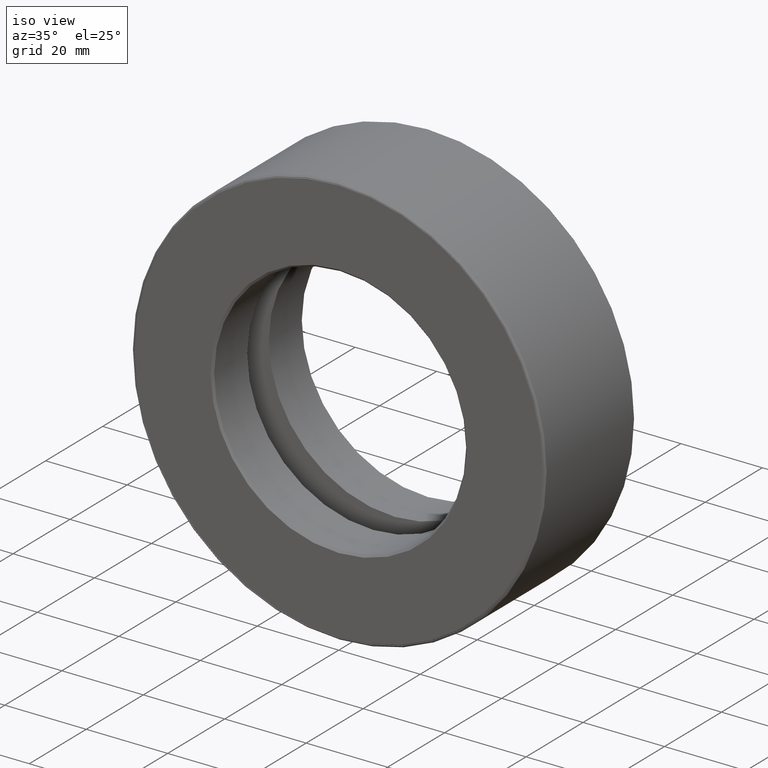
[diagram: clean part render]
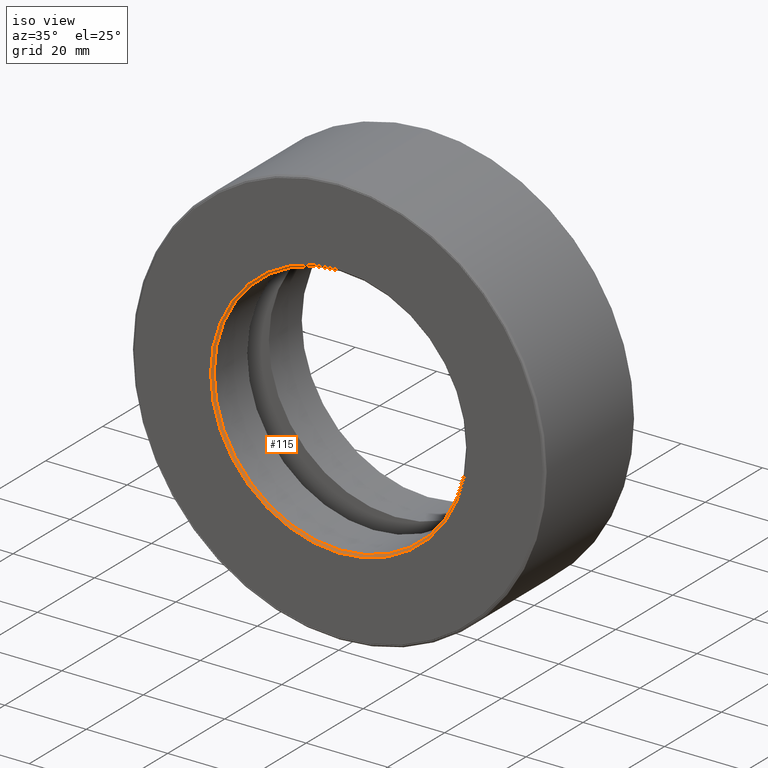
[diagram: same view with one face highlighted and labeled with its STEP entity id]
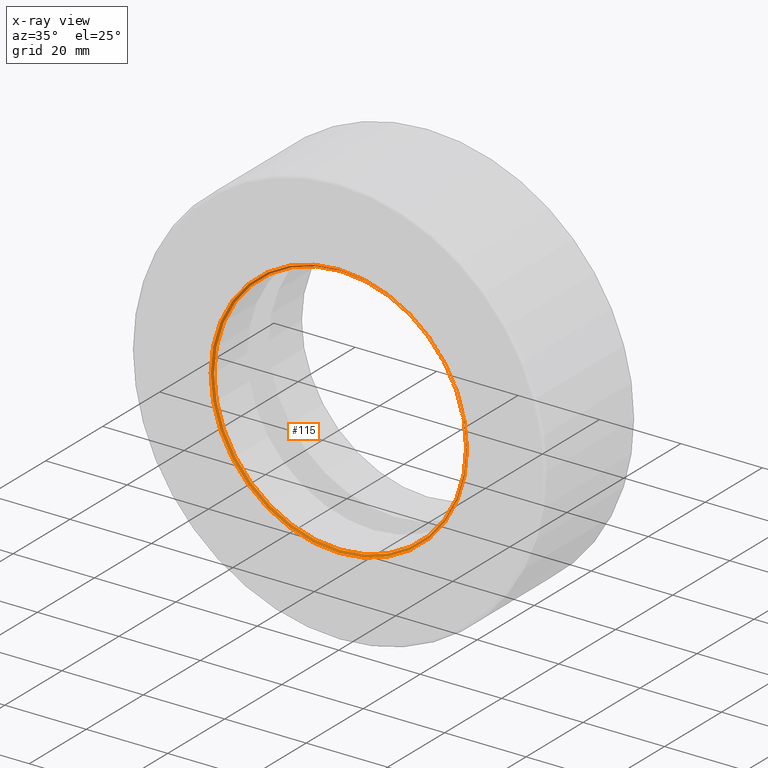
[diagram: x-ray of the same camera — body ghosted, the highlighted face saturated]
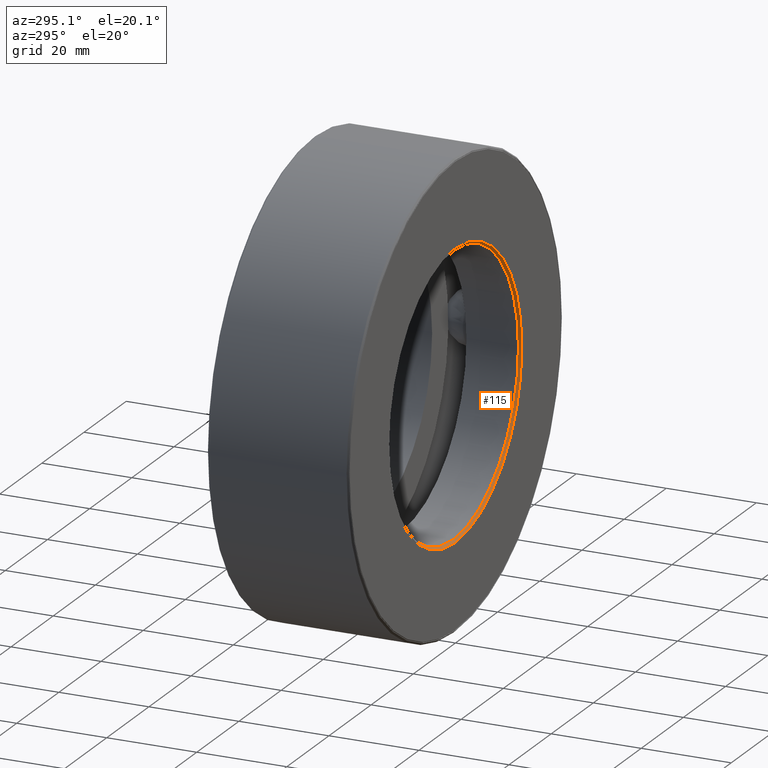
[diagram: same view with one face highlighted and labeled with its STEP entity id]
A machine part, iso view. The second image highlights one B-rep face of the part: STEP entity #115.
The next image is the same camera in x-ray: the body ghosted, the highlighted face saturated — about 0% of this face is hidden behind the body in this view.
A second angle (auxiliary view) of the same face is appended — the face is thin or edge-on in the first view.
In plain terms, the highlighted conical surface has half-angle 45 deg.
Its self-contained STEP definition (entity closure, byte-faithful):
#12 = DIRECTION ( 'NONE',  ( -0.0000000000000000000, 1.000000000000000000, -0.0000000000000000000 ) ) ;
#30 = CARTESIAN_POINT ( 'NONE',  ( 0.0000000000000000000, 0.0000000000000000000, 0.0000000000000000000 ) ) ;
#48 = ORIENTED_EDGE ( 'NONE', *, *, #431, .F. ) ;
#106 = DIRECTION ( 'NONE',  ( 0.0000000000000000000, 0.0000000000000000000, -1.000000000000000000 ) ) ;
#115 = ADVANCED_FACE ( 'NONE', ( #307, #332 ), #316, .F. ) ;
#127 = ORIENTED_EDGE ( 'NONE', *, *, #214, .T. ) ;
#128 = DIRECTION ( 'NONE',  ( -0.0000000000000000000, 1.000000000000000000, -0.0000000000000000000 ) ) ;
#174 = CIRCLE ( 'NONE', #190, 1.218750000000000000 ) ;
#190 = AXIS2_PLACEMENT_3D ( 'NONE', #250, #12, #386 ) ;
#212 = VERTEX_POINT ( 'NONE', #594 ) ;
#214 = EDGE_CURVE ( 'NONE', #212, #212, #174, .T. ) ;
#250 = CARTESIAN_POINT ( 'NONE',  ( 0.0000000000000000000, 0.02000000000000005900, 0.0000000000000000000 ) ) ;
#307 = FACE_OUTER_BOUND ( 'NONE', #419, .T. ) ;
#316 = CONICAL_SURFACE ( 'NONE', #438, 1.218750000000000000, 0.7853981633974482800 ) ;
#332 = FACE_BOUND ( 'NONE', #379, .T. ) ;
#379 = EDGE_LOOP ( 'NONE', ( #127 ) ) ;
#386 = DIRECTION ( 'NONE',  ( 0.0000000000000000000, 0.0000000000000000000, 1.000000000000000000 ) ) ;
#393 = DIRECTION ( 'NONE',  ( 0.0000000000000000000, -1.000000000000000000, 0.0000000000000000000 ) ) ;
#395 = CARTESIAN_POINT ( 'NONE',  ( 0.0000000000000000000, 0.0000000000000000000, 1.238750000000000000 ) ) ;
#398 = CARTESIAN_POINT ( 'NONE',  ( 0.0000000000000000000, 0.02000000000000005900, 0.0000000000000000000 ) ) ;
#418 = DIRECTION ( 'NONE',  ( 0.0000000000000000000, 0.0000000000000000000, 1.000000000000000000 ) ) ;
#419 = EDGE_LOOP ( 'NONE', ( #48 ) ) ;
#427 = CIRCLE ( 'NONE', #582, 1.238750000000000000 ) ;
#431 = EDGE_CURVE ( 'NONE', #504, #504, #427, .T. ) ;
#438 = AXIS2_PLACEMENT_3D ( 'NONE', #398, #393, #106 ) ;
#504 = VERTEX_POINT ( 'NONE', #395 ) ;
#582 = AXIS2_PLACEMENT_3D ( 'NONE', #30, #128, #418 ) ;
#594 = CARTESIAN_POINT ( 'NONE',  ( 0.0000000000000000000, 0.02000000000000005900, 1.218750000000000000 ) ) ;